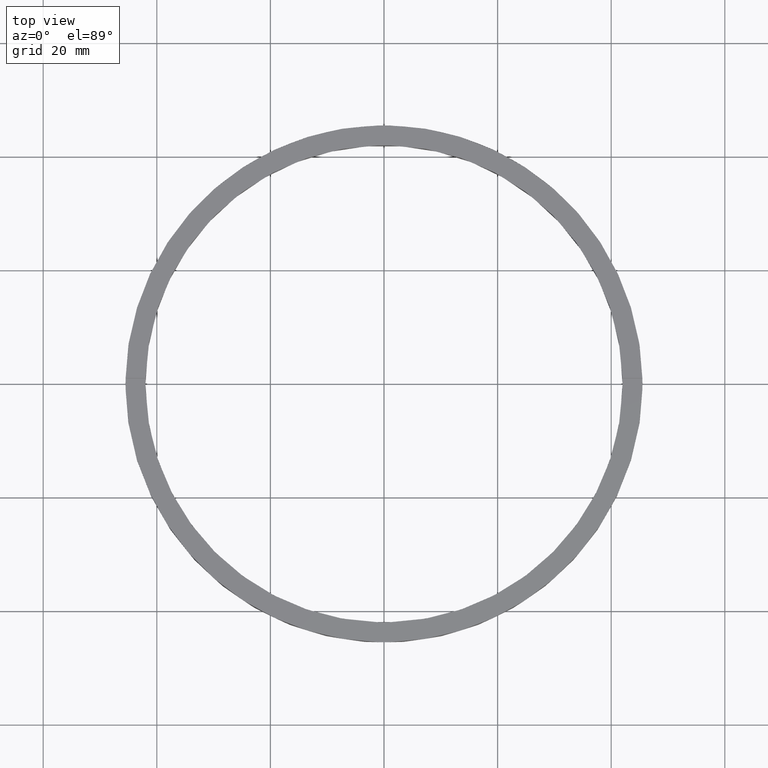
[diagram: clean part render]
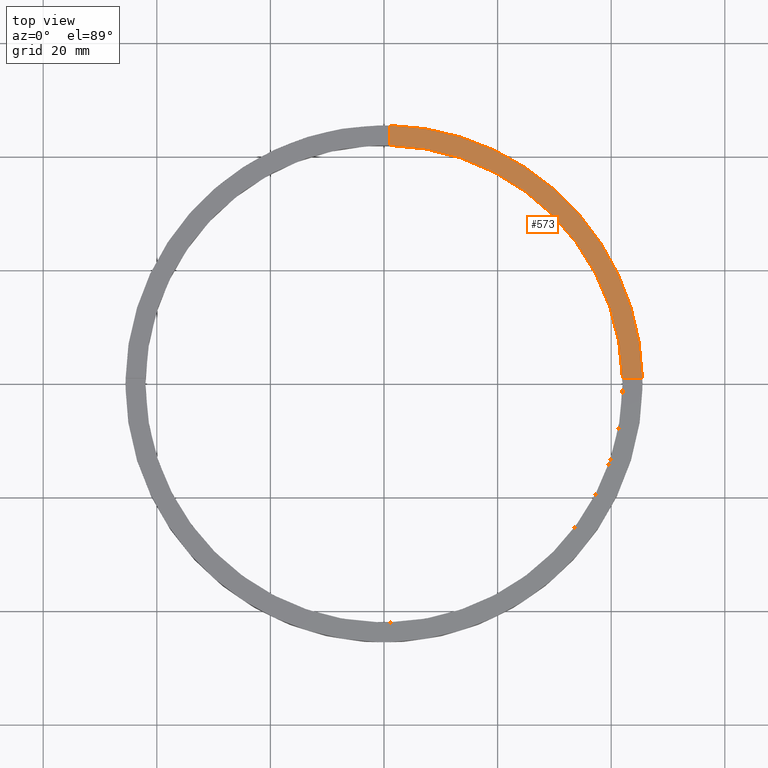
[diagram: same view with one face highlighted and labeled with its STEP entity id]
A machine part, top view. The second image highlights one B-rep face of the part: STEP entity #573.
In plain terms, the highlighted planar face has unit normal (0, 0, 1).
Its self-contained STEP definition (entity closure, byte-faithful):
#14 = CARTESIAN_POINT ( 'NONE',  ( 0.9999999999999737987, 41.98809355043403713, 4.500000000000000000 ) ) ;
#30 = DIRECTION ( 'NONE',  ( 1.000000000000000000, 0.000000000000000000, -0.000000000000000000 ) ) ;
#36 = EDGE_CURVE ( 'NONE', #118, #180, #359, .T. ) ;
#51 = CARTESIAN_POINT ( 'NONE',  ( 0.9999999999999737987, 45.48900966167541782, 4.500000000000000000 ) ) ;
#53 = CARTESIAN_POINT ( 'NONE',  ( 45.48900966167542492, 0.9999999999998439026, 4.500000000000000000 ) ) ;
#71 = CARTESIAN_POINT ( 'NONE',  ( 0.000000000000000000, 0.000000000000000000, 4.500000000000000000 ) ) ;
#97 = EDGE_CURVE ( 'NONE', #696, #180, #102, .T. ) ;
#102 = LINE ( 'NONE', #600, #356 ) ;
#111 = ORIENTED_EDGE ( 'NONE', *, *, #36, .T. ) ;
#118 = VERTEX_POINT ( 'NONE', #53 ) ;
#135 = ORIENTED_EDGE ( 'NONE', *, *, #97, .F. ) ;
#136 = AXIS2_PLACEMENT_3D ( 'NONE', #670, #750, #409 ) ;
#168 = CIRCLE ( 'NONE', #269, 42.00000000000000000 ) ;
#180 = VERTEX_POINT ( 'NONE', #51 ) ;
#185 = CARTESIAN_POINT ( 'NONE',  ( 41.98809355043403713, 0.9999999999998436806, 4.500000000000000000 ) ) ;
#214 = ORIENTED_EDGE ( 'NONE', *, *, #408, .F. ) ;
#221 = DIRECTION ( 'NONE',  ( 0.000000000000000000, 1.000000000000000000, 0.000000000000000000 ) ) ;
#236 = AXIS2_PLACEMENT_3D ( 'NONE', #566, #765, #30 ) ;
#269 = AXIS2_PLACEMENT_3D ( 'NONE', #71, #624, #411 ) ;
#274 = DIRECTION ( 'NONE',  ( -1.000000000000000000, -6.505213034913025371E-17, -0.000000000000000000 ) ) ;
#309 = PLANE ( 'NONE',  #236 ) ;
#329 = CARTESIAN_POINT ( 'NONE',  ( 35.49999999999999289, 0.9999999999998432365, 4.500000000000000000 ) ) ;
#356 = VECTOR ( 'NONE', #221, 1000.000000000000000 ) ;
#359 = CIRCLE ( 'NONE', #136, 45.50000000000000000 ) ;
#408 = EDGE_CURVE ( 'NONE', #118, #709, #782, .T. ) ;
#409 = DIRECTION ( 'NONE',  ( 1.000000000000000000, 0.000000000000000000, 0.000000000000000000 ) ) ;
#411 = DIRECTION ( 'NONE',  ( 1.000000000000000000, 0.000000000000000000, 0.000000000000000000 ) ) ;
#517 = VECTOR ( 'NONE', #274, 1000.000000000000000 ) ;
#566 = CARTESIAN_POINT ( 'NONE',  ( 0.000000000000000000, 0.000000000000000000, 4.500000000000000000 ) ) ;
#573 = ADVANCED_FACE ( 'NONE', ( #695 ), #309, .T. ) ;
#597 = EDGE_LOOP ( 'NONE', ( #135, #676, #214, #111 ) ) ;
#600 = CARTESIAN_POINT ( 'NONE',  ( 0.9999999999999737987, 35.50000000000000000, 4.500000000000000000 ) ) ;
#624 = DIRECTION ( 'NONE',  ( 0.000000000000000000, 0.000000000000000000, 1.000000000000000000 ) ) ;
#670 = CARTESIAN_POINT ( 'NONE',  ( 0.000000000000000000, 0.000000000000000000, 4.500000000000000000 ) ) ;
#674 = EDGE_CURVE ( 'NONE', #709, #696, #168, .T. ) ;
#676 = ORIENTED_EDGE ( 'NONE', *, *, #674, .F. ) ;
#695 = FACE_OUTER_BOUND ( 'NONE', #597, .T. ) ;
#696 = VERTEX_POINT ( 'NONE', #14 ) ;
#709 = VERTEX_POINT ( 'NONE', #185 ) ;
#750 = DIRECTION ( 'NONE',  ( 0.000000000000000000, 0.000000000000000000, 1.000000000000000000 ) ) ;
#765 = DIRECTION ( 'NONE',  ( 0.000000000000000000, 0.000000000000000000, 1.000000000000000000 ) ) ;
#782 = LINE ( 'NONE', #329, #517 ) ;